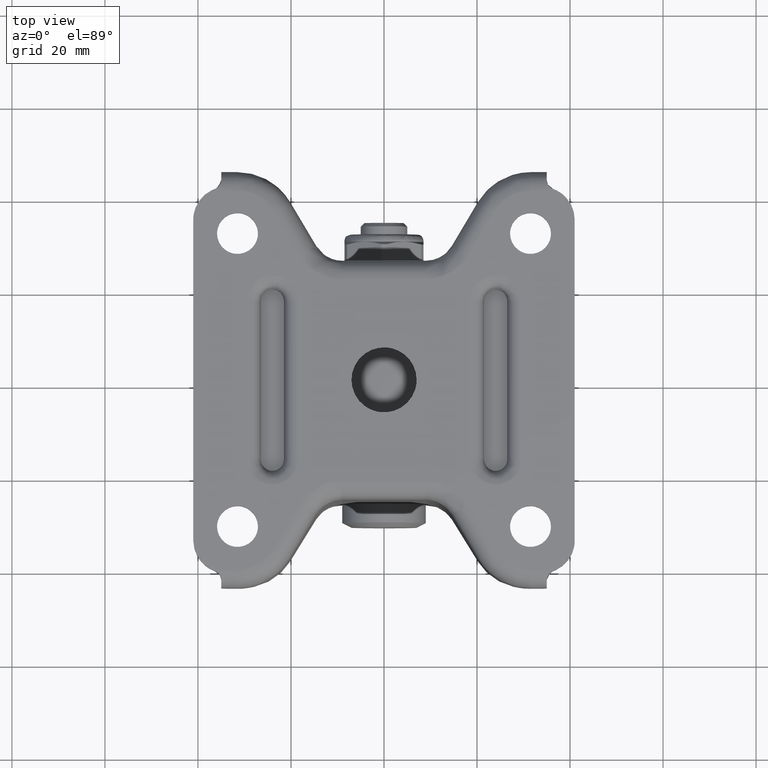
[diagram: clean part render]
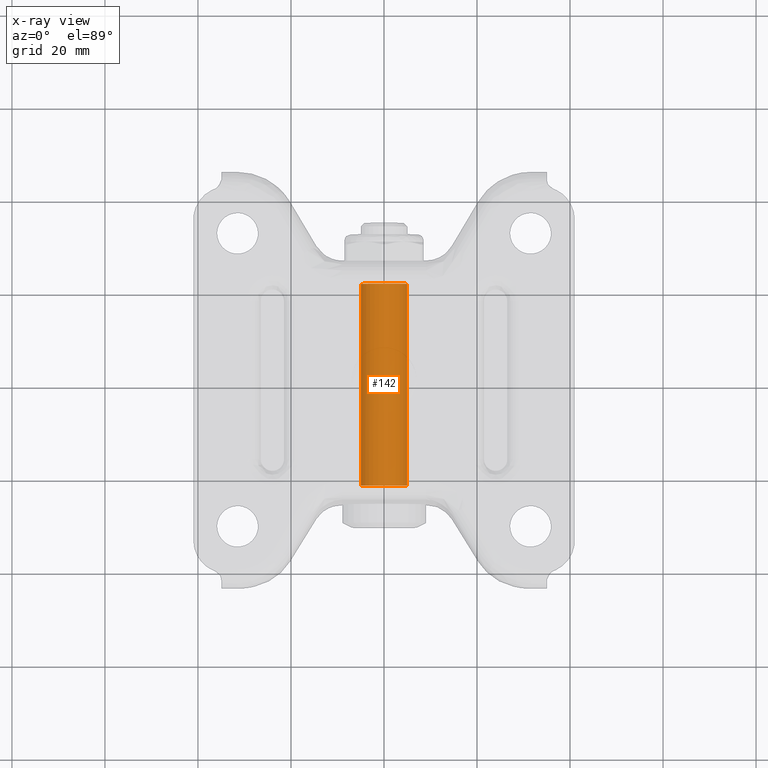
[diagram: x-ray — body ghosted, one internal face saturated and labeled with its STEP entity id]
A machine part, top view, then the same camera in x-ray: the body is ghosted and one INTERNAL B-rep face — a face not visible from any outside direction — is saturated and labeled: STEP entity #142.
In plain terms, the highlighted face is a freeform B-spline surface patch.
Its self-contained STEP definition (entity closure, byte-faithful):
#44=CARTESIAN_POINT('',(4.961331069127693,22.784996850000155,-61.879359989600843));
#45=CARTESIAN_POINT('',(4.408656290666105,22.784996850000155,-57.461335847487781));
#46=CARTESIAN_POINT('',(-0.043632677491869,22.784996850000159,-57.500190384679136));
#47=CARTESIAN_POINT('',(-5.043442292812725,22.784996850000162,-57.543823062171008));
#48=CARTESIAN_POINT('',(-4.999809615320855,22.784996850000159,-62.543632677491871));
#49=CARTESIAN_POINT('',(4.961331069127693,-22.812121846250168,-61.879359989600843));
#50=CARTESIAN_POINT('',(4.408656290666105,-22.812121846250164,-57.461335847487781));
#51=CARTESIAN_POINT('',(-0.043632677491869,-22.812121846250161,-57.500190384679136));
#52=CARTESIAN_POINT('',(-5.043442292812725,-22.812121846250172,-57.543823062171008));
#53=CARTESIAN_POINT('',(-4.999809615320855,-22.812121846250161,-62.543632677491871));
#61=(BOUNDED_SURFACE()B_SPLINE_SURFACE(2,1,((#44,#49),(#45,#50),(#46,#51),(#47,#52),(#48,#53)),.UNSPECIFIED.,.F.,.F.,.U.)B_SPLINE_SURFACE_WITH_KNOTS((3,2,3),(2,2),(0.0,7.621529547664949,15.905800795126851),(0.0,45.597118696250327),.UNSPECIFIED.)GEOMETRIC_REPRESENTATION_ITEM()RATIONAL_B_SPLINE_SURFACE(((0.956886118190660,0.956886118190660),(0.730538238691624,0.730538238691624),(1.0,1.0),(0.707106781186548,0.707106781186548),(1.0,1.0)))REPRESENTATION_ITEM('')SURFACE());
#62=CARTESIAN_POINT('',(0.0,21.699997000000149,-57.500000000000000));
#63=VERTEX_POINT('',#62);
#64=CARTESIAN_POINT('',(4.961331069110301,21.699997000000149,-61.879359989461818));
#65=VERTEX_POINT('',#64);
#66=CARTESIAN_POINT('',(0.0,21.699997000000149,-57.500000000000000));
#67=CARTESIAN_POINT('',(4.413493000501853,21.699997000000145,-57.499999999999986));
#68=CARTESIAN_POINT('',(4.961331069110301,21.699997000000153,-61.879359989461818));
#76=(BOUNDED_CURVE()B_SPLINE_CURVE(2,(#66,#67,#68),.UNSPECIFIED.,.F.,.U.)B_SPLINE_CURVE_WITH_KNOTS((3,3),(0.0,0.228526071019847),.UNSPECIFIED.)CURVE()GEOMETRIC_REPRESENTATION_ITEM()RATIONAL_B_SPLINE_CURVE((1.0,0.732265053904822,0.954005430256376))REPRESENTATION_ITEM(''));
#77=EDGE_CURVE('',#63,#65,#76,.T.);
#78=ORIENTED_EDGE('',*,*,#77,.T.);
#79=CARTESIAN_POINT('',(4.961331069103086,-21.699997000000149,-61.879359989404151));
#80=VERTEX_POINT('',#79);
#81=CARTESIAN_POINT('',(4.961331069110301,21.699997000000149,-61.879359989461818));
#82=CARTESIAN_POINT('',(4.961331069103086,-21.699997000000149,-61.879359989404151));
#83=QUASI_UNIFORM_CURVE('',1,(#81,#82),.UNSPECIFIED.,.F.,.U.);
#84=EDGE_CURVE('',#65,#80,#83,.T.);
#85=ORIENTED_EDGE('',*,*,#84,.T.);
#86=CARTESIAN_POINT('',(0.0,-21.699997000000149,-57.500000000000000));
#87=VERTEX_POINT('',#86);
#88=CARTESIAN_POINT('',(4.961331069103086,-21.699997000000142,-61.879359989404151));
#89=CARTESIAN_POINT('',(4.413493000398444,-21.699997000000145,-57.499999999999986));
#90=CARTESIAN_POINT('',(0.0,-21.699997000000149,-57.500000000000000));
#98=(BOUNDED_CURVE()B_SPLINE_CURVE(2,(#88,#89,#90),.UNSPECIFIED.,.F.,.U.)B_SPLINE_CURVE_WITH_KNOTS((3,3),(0.271473928984074,0.500000000000000),.UNSPECIFIED.)CURVE()GEOMETRIC_REPRESENTATION_ITEM()RATIONAL_B_SPLINE_CURVE((0.954005430248767,0.732265053909415,1.0))REPRESENTATION_ITEM(''));
#99=EDGE_CURVE('',#80,#87,#98,.T.);
#100=ORIENTED_EDGE('',*,*,#99,.T.);
#101=CARTESIAN_POINT('',(-4.999809615318402,-21.699997000000149,-62.543632677773132));
#102=VERTEX_POINT('',#101);
#103=CARTESIAN_POINT('',(0.0,-21.699997000000149,-57.500000000000000));
#104=CARTESIAN_POINT('',(-5.000000000000001,-21.699997000000142,-57.499999999999986));
#105=CARTESIAN_POINT('',(-5.0,-21.699997000000149,-62.500000000000000));
#106=CARTESIAN_POINT('',(-5.0,-21.699997000000153,-62.521816754384773));
#107=CARTESIAN_POINT('',(-4.999809615318402,-21.699997000000142,-62.543632677773132));
#115=(BOUNDED_CURVE()B_SPLINE_CURVE(2,(#103,#104,#105,#106,#107),.UNSPECIFIED.,.F.,.U.)B_SPLINE_CURVE_WITH_KNOTS((3,2,3),(0.500000000000000,0.750000000000000,0.751539894354804),.UNSPECIFIED.)CURVE()GEOMETRIC_REPRESENTATION_ITEM()RATIONAL_B_SPLINE_CURVE((1.0,0.707106781186548,1.0,0.998195901543155,0.996414028054543))REPRESENTATION_ITEM(''));
#116=EDGE_CURVE('',#87,#102,#115,.T.);
#117=ORIENTED_EDGE('',*,*,#116,.T.);
#118=CARTESIAN_POINT('',(-4.999809615318666,21.699997000000149,-62.543632677742721));
#119=VERTEX_POINT('',#118);
#120=CARTESIAN_POINT('',(-4.999809615318666,21.699997000000149,-62.543632677742721));
#121=CARTESIAN_POINT('',(-4.999809615318402,-21.699997000000149,-62.543632677773132));
#122=QUASI_UNIFORM_CURVE('',1,(#120,#121),.UNSPECIFIED.,.F.,.U.);
#123=EDGE_CURVE('',#119,#102,#122,.T.);
#124=ORIENTED_EDGE('',*,*,#123,.F.);
#125=CARTESIAN_POINT('',(-4.999809615318666,21.699997000000156,-62.543632677742721));
#126=CARTESIAN_POINT('',(-5.000000000000001,21.699997000000149,-62.521816754354383));
#127=CARTESIAN_POINT('',(-5.0,21.699997000000149,-62.500000000000000));
#128=CARTESIAN_POINT('',(-5.000000000000001,21.699997000000142,-57.499999999999986));
#129=CARTESIAN_POINT('',(0.0,21.699997000000149,-57.500000000000000));
#137=(BOUNDED_CURVE()B_SPLINE_CURVE(2,(#125,#126,#127,#128,#129),.UNSPECIFIED.,.F.,.U.)B_SPLINE_CURVE_WITH_KNOTS((3,2,3),(0.748460105647338,0.750000000000000,1.0),.UNSPECIFIED.)CURVE()GEOMETRIC_REPRESENTATION_ITEM()RATIONAL_B_SPLINE_CURVE((0.996414028059500,0.998195901545664,1.0,0.707106781186548,1.0))REPRESENTATION_ITEM(''));
#138=EDGE_CURVE('',#119,#63,#137,.T.);
#139=ORIENTED_EDGE('',*,*,#138,.T.);
#140=EDGE_LOOP('',(#78,#85,#100,#117,#124,#139));
#141=FACE_OUTER_BOUND('',#140,.T.);
#142=ADVANCED_FACE('',(#141),#61,.F.);